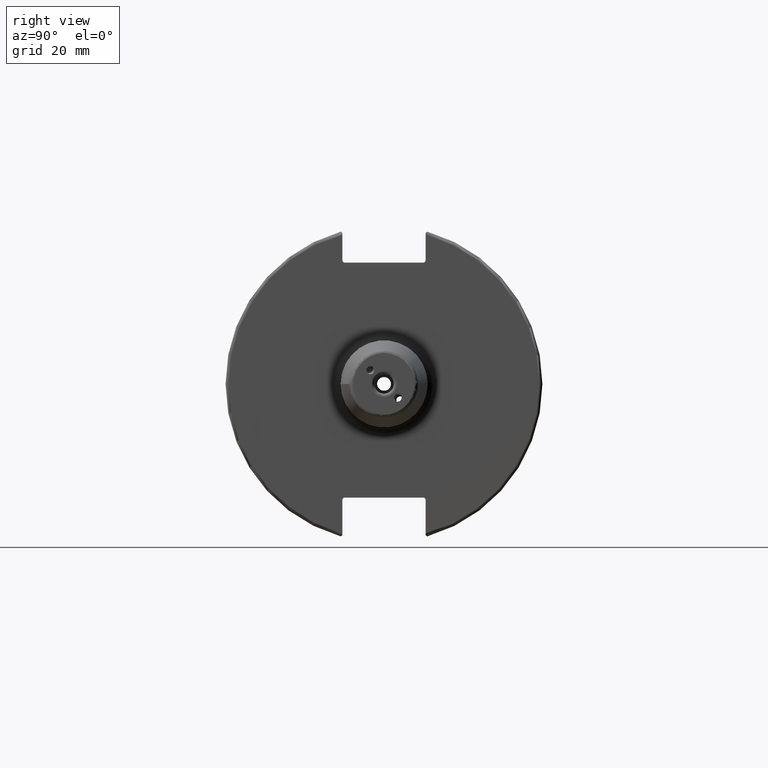
[diagram: clean part render]
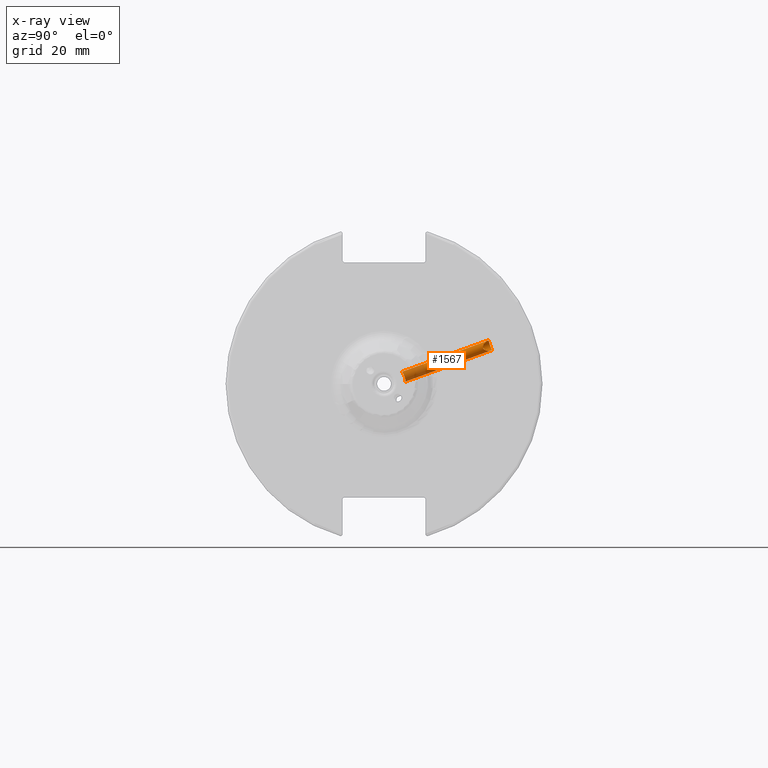
[diagram: x-ray — body ghosted, one internal face saturated and labeled with its STEP entity id]
A machine part, right view, then the same camera in x-ray: the body is ghosted and one INTERNAL B-rep face — a face not visible from any outside direction — is saturated and labeled: STEP entity #1567.
In plain terms, the highlighted cylindrical surface (bore or boss wall) has radius 1.621 mm, axis along (-0, 0.9397, 0.342).
Its self-contained STEP definition (entity closure, byte-faithful):
#101=B_SPLINE_CURVE_WITH_KNOTS('',3,(#2353,#2354,#2355,#2356,#2357,#2358,
#2359,#2360,#2361,#2362,#2363,#2364,#2365,#2366,#2367,#2368,#2369,#2370,
#2371,#2372,#2373,#2374,#2375,#2376,#2377,#2378),.UNSPECIFIED.,.F.,.F.,
(4,2,2,2,2,2,2,2,2,2,2,2,4),(0.,0.0613234388473621,0.122646877694724,0.183963050449305,
0.245279223203886,0.306595395958468,0.367911568713049,0.429235007560411,
0.490558446407773,0.551881885255135,0.613205324102497,0.674521496857078,
0.735837669611659),.UNSPECIFIED.);
#102=B_SPLINE_CURVE_WITH_KNOTS('',3,(#2379,#2380,#2381,#2382,#2383,#2384,
#2385,#2386,#2387,#2388),.UNSPECIFIED.,.F.,.F.,(4,2,2,2,4),(0.735837669611659,
0.797153842366239,0.85847001512082,0.919793453968182,0.981116892815544),
 .UNSPECIFIED.);
#112=B_SPLINE_CURVE_WITH_KNOTS('',3,(#2693,#2694,#2695,#2696,#2697,#2698,
#2699,#2700,#2701,#2702,#2703,#2704,#2705,#2706,#2707,#2708,#2709,#2710,
#2711,#2712,#2713,#2714,#2715,#2716,#2717,#2718,#2719,#2720,#2721,#2722,
#2723,#2724),.UNSPECIFIED.,.F.,.F.,(4,2,2,2,2,2,2,2,2,2,2,2,2,2,2,4),(0.,
0.0884839677067702,0.17696793541354,0.264588928472713,0.29293468020263,
0.321280431932547,0.349626183662464,0.377971935392381,0.465592928451554,
0.554076896158325,0.642560863865095,0.674019283137882,0.705477702410668,
0.76839454095624,0.837532569122269,0.892424435682428),.UNSPECIFIED.);
#113=B_SPLINE_CURVE_WITH_KNOTS('',3,(#2725,#2726,#2727,#2728,#2729,#2730,
#2731,#2732,#2733,#2734,#2735,#2736),.UNSPECIFIED.,.F.,.F.,(4,2,2,2,2,4),
(0.892424435682428,0.947316302242586,1.01645433040861,1.07937116895419,
1.11082958822697,1.14228800749976),.UNSPECIFIED.);
#155=CYLINDRICAL_SURFACE('',#1723,1.621);
#203=FACE_OUTER_BOUND('',#307,.T.);
#307=EDGE_LOOP('',(#1205,#1206,#1207,#1208,#1209,#1210));
#413=LINE('',#2737,#511);
#511=VECTOR('',#2012,1.621);
#666=VERTEX_POINT('',#2351);
#667=VERTEX_POINT('',#2352);
#724=VERTEX_POINT('',#2691);
#725=VERTEX_POINT('',#2692);
#829=EDGE_CURVE('',#666,#667,#101,.T.);
#830=EDGE_CURVE('',#667,#666,#102,.T.);
#905=EDGE_CURVE('',#724,#725,#112,.T.);
#906=EDGE_CURVE('',#725,#724,#113,.T.);
#907=EDGE_CURVE('',#725,#667,#413,.T.);
#1205=ORIENTED_EDGE('',*,*,#905,.F.);
#1206=ORIENTED_EDGE('',*,*,#906,.F.);
#1207=ORIENTED_EDGE('',*,*,#907,.T.);
#1208=ORIENTED_EDGE('',*,*,#830,.T.);
#1209=ORIENTED_EDGE('',*,*,#829,.T.);
#1210=ORIENTED_EDGE('',*,*,#907,.F.);
#1567=ADVANCED_FACE('',(#203),#155,.F.);
#1723=AXIS2_PLACEMENT_3D('',#2690,#2010,#2011);
#2010=DIRECTION('center_axis',(-1.20908356884163E-16,0.939692620785908,
0.342020143325669));
#2011=DIRECTION('ref_axis',(1.,1.28667985902711E-16,0.));
#2012=DIRECTION('',(1.20908356884163E-16,-0.939692620785908,-0.342020143325669));
#2351=CARTESIAN_POINT('',(11.127,6.711722065196,0.717834883215575));
#2352=CARTESIAN_POINT('',(9.50600000000001,6.34292519030488,2.30863596744826));
#2353=CARTESIAN_POINT('Ctrl Pts',(11.127,6.711722065196,0.717834883215575));
#2354=CARTESIAN_POINT('Ctrl Pts',(11.3314114628245,6.711722065196,0.717834883215574));
#2355=CARTESIAN_POINT('Ctrl Pts',(11.5488748285273,6.70761756471681,0.759989088057842));
#2356=CARTESIAN_POINT('Ctrl Pts',(11.9480029181722,6.68636656555147,0.928557363219902));
#2357=CARTESIAN_POINT('Ctrl Pts',(12.1297404770288,6.66867621933358,1.05472988382313));
#2358=CARTESIAN_POINT('Ctrl Pts',(12.4166827069626,6.61699822290146,1.34127817443554));
#2359=CARTESIAN_POINT('Ctrl Pts',(12.5413098178702,6.57945042198144,1.52102052972705));
#2360=CARTESIAN_POINT('Ctrl Pts',(12.7069901237873,6.47761098950162,1.90872396465733));
#2361=CARTESIAN_POINT('Ctrl Pts',(12.748,6.41282974428389,2.11657478387388));
#2362=CARTESIAN_POINT('Ctrl Pts',(12.748,6.27302063632587,2.50069715102264));
#2363=CARTESIAN_POINT('Ctrl Pts',(12.7069901237873,6.18904201798764,2.70156069784724));
#2364=CARTESIAN_POINT('Ctrl Pts',(12.5413098178702,6.0178445851231,3.06401988512925));
#2365=CARTESIAN_POINT('Ctrl Pts',(12.4166827069626,5.93107171045196,3.2258457787958));
#2366=CARTESIAN_POINT('Ctrl Pts',(12.1297404770288,5.78646966166779,3.47857248030466));
#2367=CARTESIAN_POINT('Ctrl Pts',(11.9480029181722,5.71891912015818,3.58659737394701));
#2368=CARTESIAN_POINT('Ctrl Pts',(11.5488748285273,5.62684473131912,3.729388043378));
#2369=CARTESIAN_POINT('Ctrl Pts',(11.3314114628245,5.60289276053418,3.76431835980349));
#2370=CARTESIAN_POINT('Ctrl Pts',(10.9225885371755,5.60289276053418,3.76431835980349));
#2371=CARTESIAN_POINT('Ctrl Pts',(10.7051251714727,5.62684473131912,3.72938804337799));
#2372=CARTESIAN_POINT('Ctrl Pts',(10.3059970818278,5.71891912015819,3.586597373947));
#2373=CARTESIAN_POINT('Ctrl Pts',(10.1242595229712,5.7864696616678,3.47857248030466));
#2374=CARTESIAN_POINT('Ctrl Pts',(9.83731729303739,5.93107171045196,3.22584577879579));
#2375=CARTESIAN_POINT('Ctrl Pts',(9.71269018212978,6.0178445851231,3.06401988512925));
#2376=CARTESIAN_POINT('Ctrl Pts',(9.54700987621276,6.18904201798764,2.70156069784724));
#2377=CARTESIAN_POINT('Ctrl Pts',(9.50600000000001,6.27302063632587,2.50069715102264));
#2378=CARTESIAN_POINT('Ctrl Pts',(9.50600000000001,6.34292519030488,2.30863596744826));
#2379=CARTESIAN_POINT('Ctrl Pts',(9.50600000000001,6.34292519030488,2.30863596744826));
#2380=CARTESIAN_POINT('Ctrl Pts',(9.50600000000001,6.41282974428389,2.11657478387389));
#2381=CARTESIAN_POINT('Ctrl Pts',(9.54700987621276,6.47761098950162,1.90872396465733));
#2382=CARTESIAN_POINT('Ctrl Pts',(9.71269018212978,6.57945042198144,1.52102052972705));
#2383=CARTESIAN_POINT('Ctrl Pts',(9.83731729303739,6.61699822290146,1.34127817443554));
#2384=CARTESIAN_POINT('Ctrl Pts',(10.1242595229712,6.66867621933358,1.05472988382313));
#2385=CARTESIAN_POINT('Ctrl Pts',(10.3059970818278,6.68636656555147,0.928557363219906));
#2386=CARTESIAN_POINT('Ctrl Pts',(10.7051251714727,6.70761756471681,0.759989088057844));
#2387=CARTESIAN_POINT('Ctrl Pts',(10.9225885371755,6.711722065196,0.717834883215575));
#2388=CARTESIAN_POINT('Ctrl Pts',(11.127,6.711722065196,0.717834883215575));
#2690=CARTESIAN_POINT('Origin',(11.127,21.5598376450015,7.84713915839248));
#2691=CARTESIAN_POINT('',(11.127,33.3180066739614,10.4017305252212));
#2692=CARTESIAN_POINT('',(9.506,32.9302546125277,11.9856324857674));
#2693=CARTESIAN_POINT('Ctrl Pts',(11.127,33.3180066739614,10.4017305252212));
#2694=CARTESIAN_POINT('Ctrl Pts',(11.3686060767793,33.1590347421905,10.3438694739727));
#2695=CARTESIAN_POINT('Ctrl Pts',(11.5793820284691,32.9265222260495,10.3130739191917));
#2696=CARTESIAN_POINT('Ctrl Pts',(11.9610018879898,32.4227535856658,10.3052665038932));
#2697=CARTESIAN_POINT('Ctrl Pts',(12.1308400889368,32.1507028147897,10.3305992558997));
#2698=CARTESIAN_POINT('Ctrl Pts',(12.4142114787667,31.6507121188742,10.450175059589));
#2699=CARTESIAN_POINT('Ctrl Pts',(12.5624213105869,31.3550631351684,10.5662118597017));
#2700=CARTESIAN_POINT('Ctrl Pts',(12.6780350131118,31.0691918693162,10.7993137473042));
#2701=CARTESIAN_POINT('Ctrl Pts',(12.7040094113745,30.9979746661842,10.8699279351394));
#2702=CARTESIAN_POINT('Ctrl Pts',(12.7390906022264,30.8779301513201,11.0303555632259));
#2703=CARTESIAN_POINT('Ctrl Pts',(12.748,30.8293999774207,11.1204342022846));
#2704=CARTESIAN_POINT('Ctrl Pts',(12.748,30.7647678569584,11.2980094938262));
#2705=CARTESIAN_POINT('Ctrl Pts',(12.7390906022264,30.7440426939133,11.3982083291993));
#2706=CARTESIAN_POINT('Ctrl Pts',(12.7040094113745,30.7328812358665,11.5982661489831));
#2707=CARTESIAN_POINT('Ctrl Pts',(12.6780350131118,30.7420468535717,11.6981372909494));
#2708=CARTESIAN_POINT('Ctrl Pts',(12.5624213105869,30.8112019430797,12.0604582042831));
#2709=CARTESIAN_POINT('Ctrl Pts',(12.4142114787667,30.9630951867812,12.3393870537492));
#2710=CARTESIAN_POINT('Ctrl Pts',(12.1308400889368,31.2692484359686,12.7523752579899));
#2711=CARTESIAN_POINT('Ctrl Pts',(11.9610018879898,31.4613678381355,12.9466521366183));
#2712=CARTESIAN_POINT('Ctrl Pts',(11.5793820284691,31.8522955155365,13.264487549701));
#2713=CARTESIAN_POINT('Ctrl Pts',(11.3686060767793,32.0502054375286,13.3903529505607));
#2714=CARTESIAN_POINT('Ctrl Pts',(11.0411025718087,32.2656961467896,13.4687851544926));
#2715=CARTESIAN_POINT('Ctrl Pts',(10.9475197272613,32.319337112024,13.4809373024586));
#2716=CARTESIAN_POINT('Ctrl Pts',(10.7524056152646,32.4120347916018,13.478660481775));
#2717=CARTESIAN_POINT('Ctrl Pts',(10.6508468329885,32.4510290142907,13.4640493136015));
#2718=CARTESIAN_POINT('Ctrl Pts',(10.3515687330207,32.5462208483495,13.3776426663642));
#2719=CARTESIAN_POINT('Ctrl Pts',(10.1588386735598,32.5827431071443,13.2604924449868));
#2720=CARTESIAN_POINT('Ctrl Pts',(9.84134561894807,32.655830196381,12.9644900573906));
#2721=CARTESIAN_POINT('Ctrl Pts',(9.69002806088231,32.7033162128217,12.737930692361));
#2722=CARTESIAN_POINT('Ctrl Pts',(9.54526126545399,32.8036762615874,12.3639022622834));
#2723=CARTESIAN_POINT('Ctrl Pts',(9.506,32.8676741989667,12.1575707589266));
#2724=CARTESIAN_POINT('Ctrl Pts',(9.506,32.9302546125277,11.9856324857674));
#2725=CARTESIAN_POINT('Ctrl Pts',(9.506,32.9302546125277,11.9856324857674));
#2726=CARTESIAN_POINT('Ctrl Pts',(9.506,32.9928350260888,11.8136942126083));
#2727=CARTESIAN_POINT('Ctrl Pts',(9.54526126545399,33.0764370956341,11.6144980298285));
#2728=CARTESIAN_POINT('Ctrl Pts',(9.69002806088231,33.2399776784904,11.2634654335448));
#2729=CARTESIAN_POINT('Ctrl Pts',(9.84134561894807,33.3492308321696,11.0593874679259));
#2730=CARTESIAN_POINT('Ctrl Pts',(10.1588386735598,33.4835095407806,10.7856570083685));
#2731=CARTESIAN_POINT('Ctrl Pts',(10.3515687330207,33.5308345781541,10.6724386768412));
#2732=CARTESIAN_POINT('Ctrl Pts',(10.6508468329885,33.5134545248817,10.5450592134001));
#2733=CARTESIAN_POINT('Ctrl Pts',(10.7524056152646,33.4929750951421,10.5088014060196));
#2734=CARTESIAN_POINT('Ctrl Pts',(10.9475197272613,33.4234280649364,10.4474723403076));
#2735=CARTESIAN_POINT('Ctrl Pts',(11.0411025718087,33.3745254514514,10.4223016779046));
#2736=CARTESIAN_POINT('Ctrl Pts',(11.127,33.3180066739614,10.4017305252212));
#2737=CARTESIAN_POINT('',(9.506,21.5598376450015,7.84713915839248));